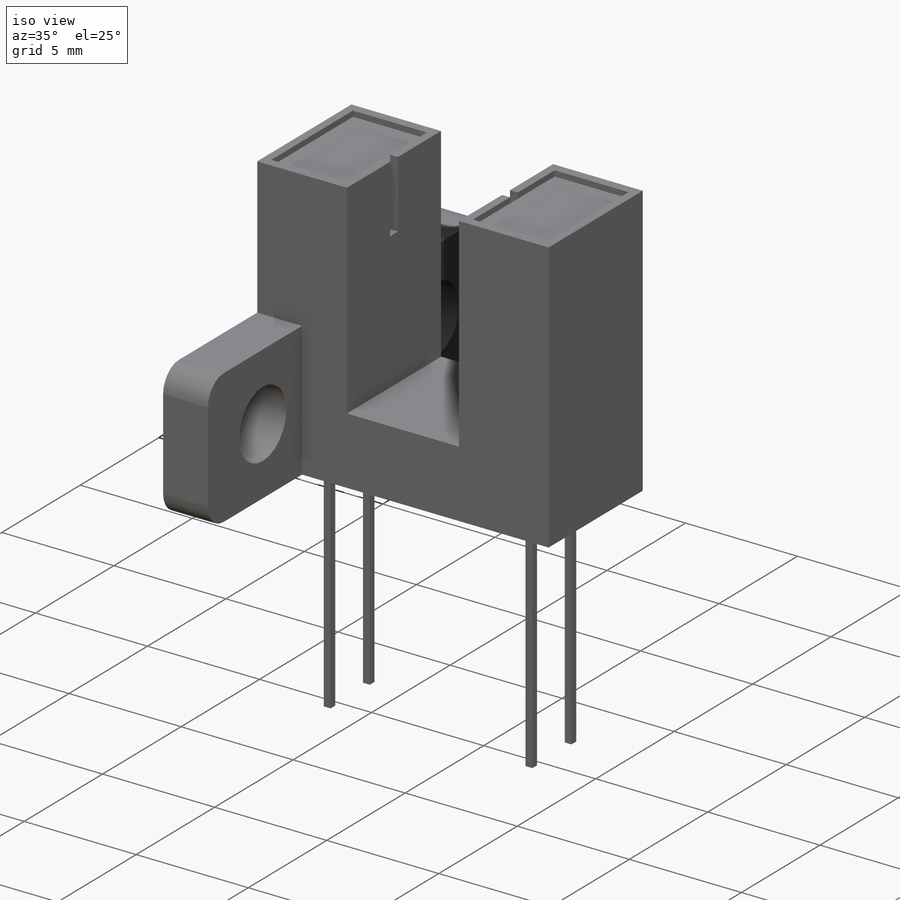
[diagram: iso view]
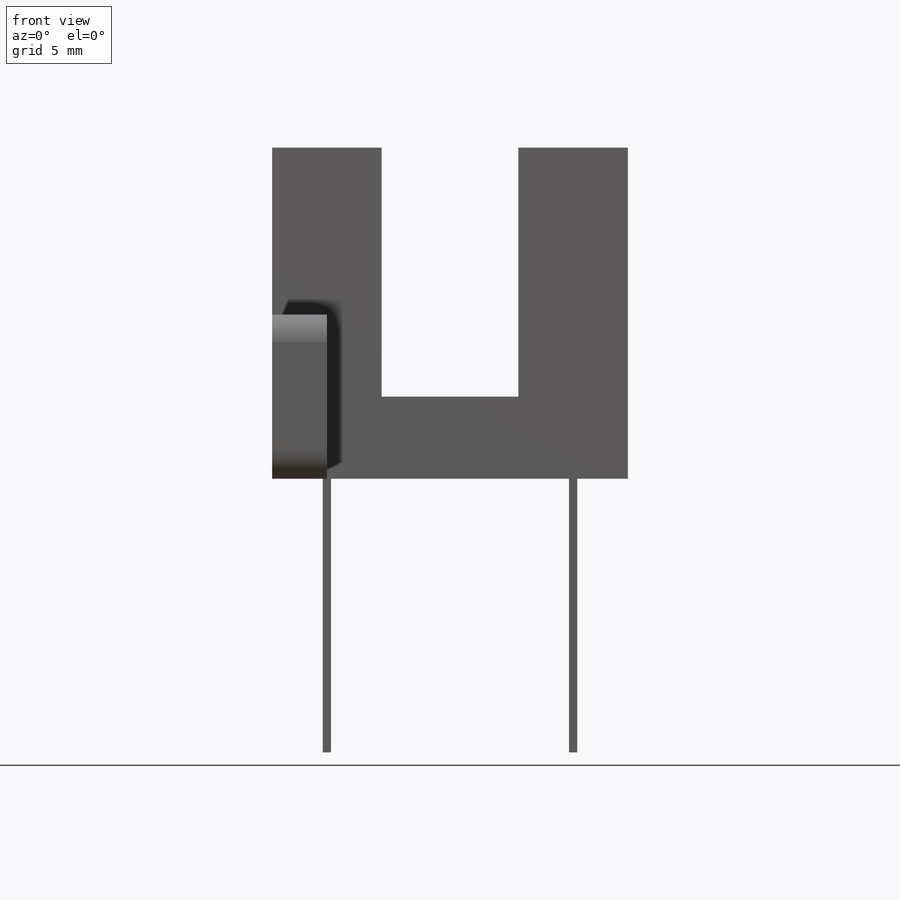
[diagram: front view]
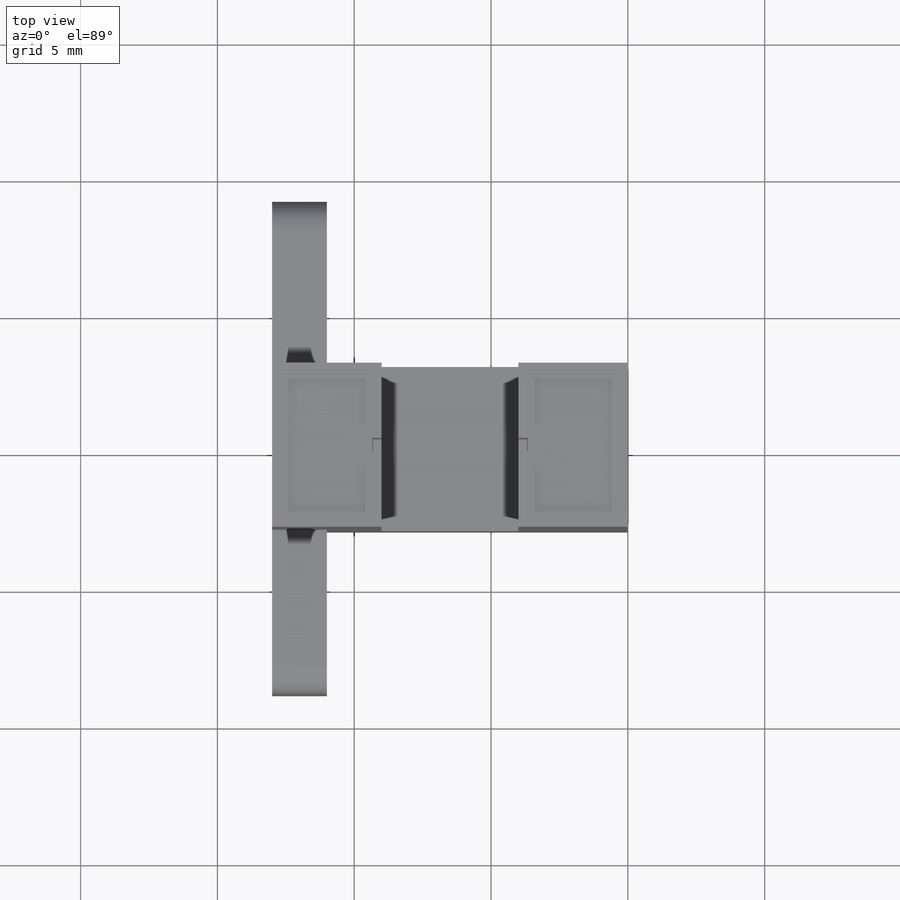
[diagram: top view]
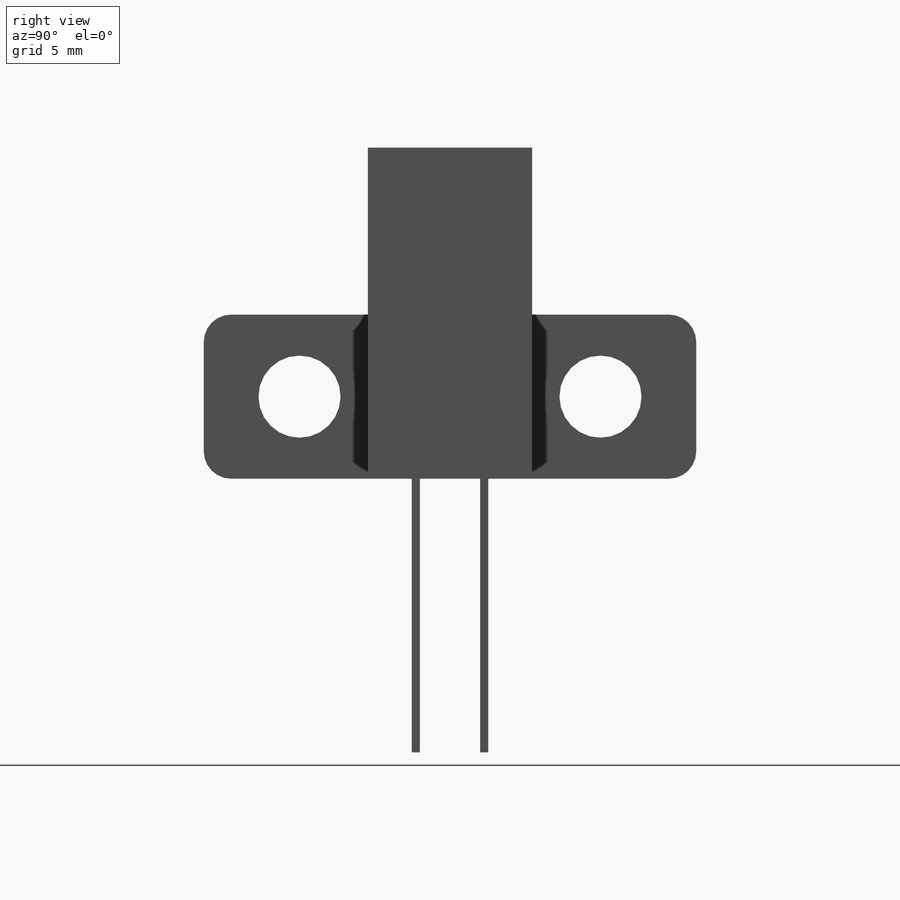
[diagram: right view]
SOLIDWORKS PART (.sldprt)
format: sldprt  version: not decoded by parser v0  size: 294,912 bytes
history: native  units: mm
features: sketch x7, cut_extrude x4, extrude x3, material x1, fillet x1, plane x1, mirror x1, pattern_linear x1 (+13 scaffold rows collapsed)
feature tree (32):
  scaffold x13  (default folders/planes/origin — collapsed)
  material  "Material <not specified>"
  sketch  "Sketch1"  dims[c1.D1=12.1mm c1.D2=3.0mm c1.D3=6.0mm c1.D4=5.0mm c2.D3=13.0mm c2.D5=9.1mm]
  extrude  "Boss-Extrude1"  Depth=6mm
  sketch  "Sketch3"  dims[D1=18.0mm D2=6.0mm]
  extrude  "Boss-Extrude2"  Depth=2mm
  sketch  "Sketch4"  dims[D1=3.0mm D2=11.0mm]
  cut_extrude  "Cut-Extrude1"  [1 undecoded]
  fillet  "Fillet1"  Radius=1mm
  plane  "Plane1"
  sketch  "Sketch5"  dims[D1=0.35mm D2=0.35mm D3=0.4mm D4=0.4mm]
  cut_extrude  "Cut-Extrude2"  Depth=0.25mm
  sketch  "Sketch6"  dims[D1=0.5mm D2=3.0mm]
  cut_extrude  "Cut-Extrude3"  [1 undecoded]
  mirror  "Mirror1"
  sketch  "Sketch7"  dims[D1=12.0mm D2=5.0mm]
  cut_extrude  "Cut-Extrude4"  Depth=2mm
  sketch  "Sketch8"  dims[D1=0.3mm D2=4.5mm D3=1.25mm]
  extrude  "Boss-Extrude3"  Depth=12mm
  pattern_linear  "LPattern1"  Count1=2 Count2=2 Spacing1=9mm Spacing2=2.5mm
decode coverage: 14 of 17 modeling features carry decoded parameters
note: 2 parameter values undecoded
note: suppression state not decoded; provenance and decode notes live in map.json
